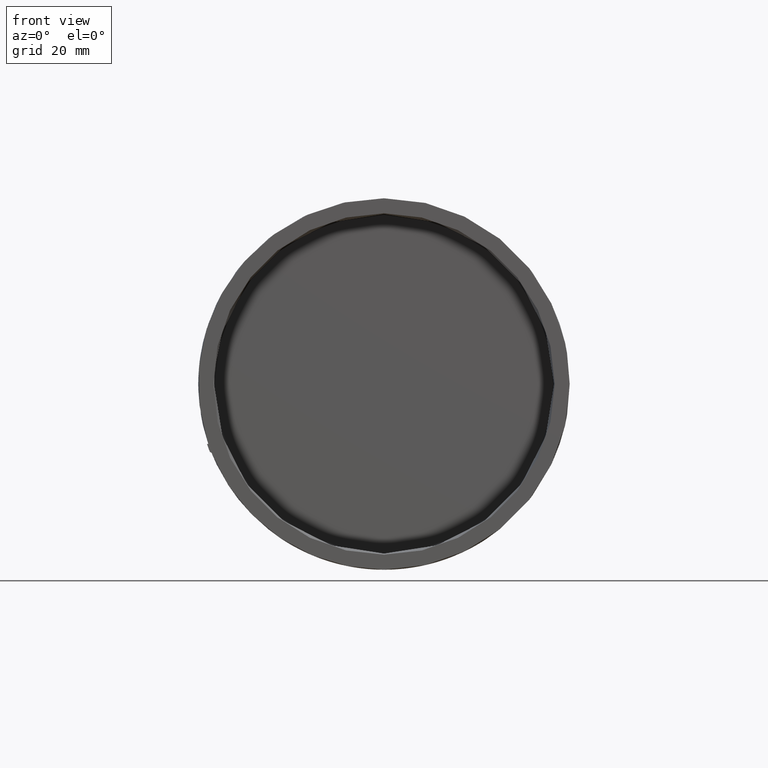
[diagram: clean part render]
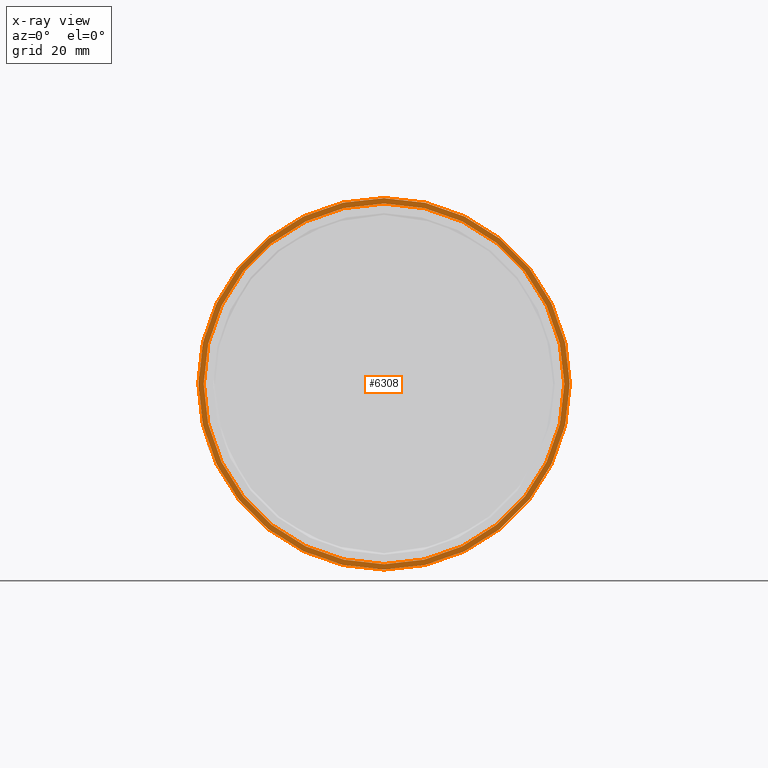
[diagram: x-ray — body ghosted, one internal face saturated and labeled with its STEP entity id]
A machine part, front view, then the same camera in x-ray: the body is ghosted and one INTERNAL B-rep face — a face not visible from any outside direction — is saturated and labeled: STEP entity #6308.
In plain terms, the highlighted planar face has unit normal (-0, -1, 0).
Its self-contained STEP definition (entity closure, byte-faithful):
#298 = EDGE_CURVE ( 'NONE', #1407, #4315, #7852, .T. ) ;
#456 = DIRECTION ( 'NONE',  ( 1.000000000000000000, -1.054711873393900094E-15, 0.0000000000000000000 ) ) ;
#751 = CARTESIAN_POINT ( 'NONE',  ( 1.092739197465710612E-15, 0.08661417322834842614, -5.459328976215813537E-31 ) ) ;
#1154 = CARTESIAN_POINT ( 'NONE',  ( 1.092739197465710612E-15, 0.08661417322834842614, -5.459328976215813537E-31 ) ) ;
#1319 = CIRCLE ( 'NONE', #9398, 1.184990743645742306 ) ;
#1407 = VERTEX_POINT ( 'NONE', #10151 ) ;
#1801 = CARTESIAN_POINT ( 'NONE',  ( 1.092739197465710612E-15, 0.08661417322834850940, -5.459328976215813537E-31 ) ) ;
#1940 = EDGE_LOOP ( 'NONE', ( #3595, #12358 ) ) ;
#2341 = DIRECTION ( 'NONE',  ( 1.000000000000000000, -1.051827327591292962E-15, 0.0000000000000000000 ) ) ;
#2488 = FACE_OUTER_BOUND ( 'NONE', #5603, .T. ) ;
#2734 = EDGE_CURVE ( 'NONE', #2914, #10083, #11019, .T. ) ;
#2914 = VERTEX_POINT ( 'NONE', #4544 ) ;
#3115 = DIRECTION ( 'NONE',  ( 1.056222761582651924E-15, 1.000000000000000000, -5.319448317227842221E-31 ) ) ;
#3431 = FACE_BOUND ( 'NONE', #1940, .T. ) ;
#3595 = ORIENTED_EDGE ( 'NONE', *, *, #12446, .T. ) ;
#3826 = DIRECTION ( 'NONE',  ( 1.051827327591292765E-15, 1.000000000000000000, -5.455926873211268443E-31 ) ) ;
#4064 = DIRECTION ( 'NONE',  ( 1.000000000000000000, -1.049227908856939240E-15, 0.0000000000000000000 ) ) ;
#4315 = VERTEX_POINT ( 'NONE', #9893 ) ;
#4544 = CARTESIAN_POINT ( 'NONE',  ( 1.220472440944883719, 0.08661417322834713550, -5.459328976215813537E-31 ) ) ;
#5603 = EDGE_LOOP ( 'NONE', ( #11809, #8506 ) ) ;
#5626 = AXIS2_PLACEMENT_3D ( 'NONE', #10767, #8864, #2341 ) ;
#5970 = AXIS2_PLACEMENT_3D ( 'NONE', #751, #9367, #8603 ) ;
#6308 = ADVANCED_FACE ( 'NONE', ( #3431, #2488 ), #6351, .T. ) ;
#6351 = PLANE ( 'NONE',  #6448 ) ;
#6448 = AXIS2_PLACEMENT_3D ( 'NONE', #10220, #9148, #456 ) ;
#6465 = EDGE_CURVE ( 'NONE', #10083, #2914, #11297, .T. ) ;
#6681 = DIRECTION ( 'NONE',  ( 1.000000000000000000, -1.051827327591292962E-15, 0.0000000000000000000 ) ) ;
#7852 = CIRCLE ( 'NONE', #5626, 1.184990743645742306 ) ;
#8506 = ORIENTED_EDGE ( 'NONE', *, *, #6465, .F. ) ;
#8603 = DIRECTION ( 'NONE',  ( 1.000000000000000000, -1.049227908856939240E-15, 0.0000000000000000000 ) ) ;
#8864 = DIRECTION ( 'NONE',  ( 1.051827327591292765E-15, 1.000000000000000000, -5.455926873211268443E-31 ) ) ;
#9148 = DIRECTION ( 'NONE',  ( -1.054711873393900094E-15, -1.000000000000000000, 5.269344327843500065E-31 ) ) ;
#9367 = DIRECTION ( 'NONE',  ( 1.056222761582651924E-15, 1.000000000000000000, -5.319448317227842221E-31 ) ) ;
#9398 = AXIS2_PLACEMENT_3D ( 'NONE', #1801, #3826, #6681 ) ;
#9613 = CARTESIAN_POINT ( 'NONE',  ( -1.220472440944881498, 0.08661417322834973065, 1.494647668250702289E-16 ) ) ;
#9893 = CARTESIAN_POINT ( 'NONE',  ( 1.184990743645743416, 0.08661417322834726040, -5.459328976215813537E-31 ) ) ;
#10083 = VERTEX_POINT ( 'NONE', #9613 ) ;
#10151 = CARTESIAN_POINT ( 'NONE',  ( -1.184990743645741196, 0.08661417322834975840, 1.451195121224994573E-16 ) ) ;
#10220 = CARTESIAN_POINT ( 'NONE',  ( -1.184990743645740086, 0.08661417322834961963, 5.920218034034370103E-16 ) ) ;
#10767 = CARTESIAN_POINT ( 'NONE',  ( 1.092739197465710612E-15, 0.08661417322834850940, -5.459328976215813537E-31 ) ) ;
#11019 = CIRCLE ( 'NONE', #5970, 1.220472440944882608 ) ;
#11297 = CIRCLE ( 'NONE', #12515, 1.220472440944882608 ) ;
#11809 = ORIENTED_EDGE ( 'NONE', *, *, #2734, .F. ) ;
#12358 = ORIENTED_EDGE ( 'NONE', *, *, #298, .T. ) ;
#12446 = EDGE_CURVE ( 'NONE', #4315, #1407, #1319, .T. ) ;
#12515 = AXIS2_PLACEMENT_3D ( 'NONE', #1154, #3115, #4064 ) ;